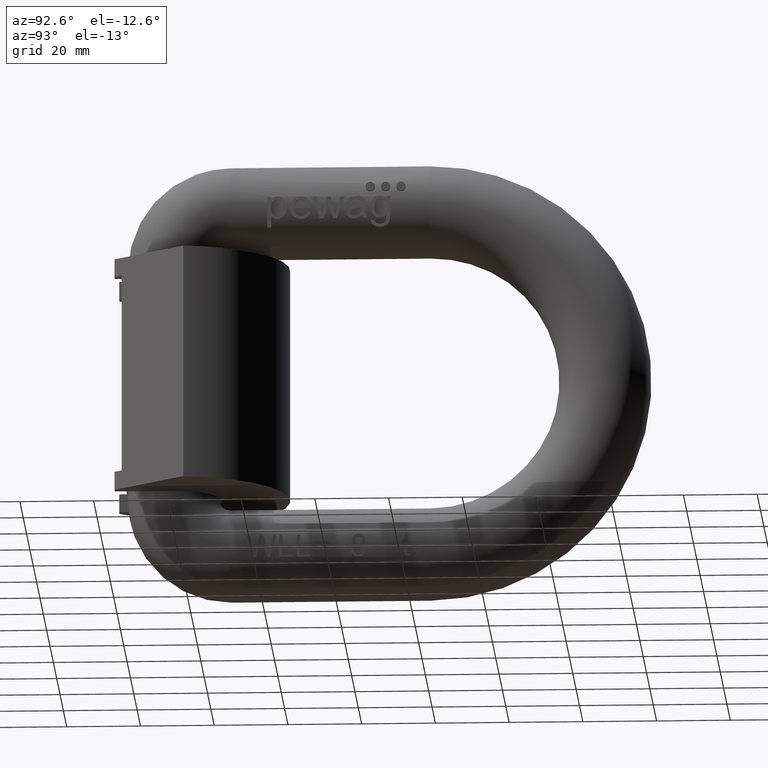
[diagram: clean part render]
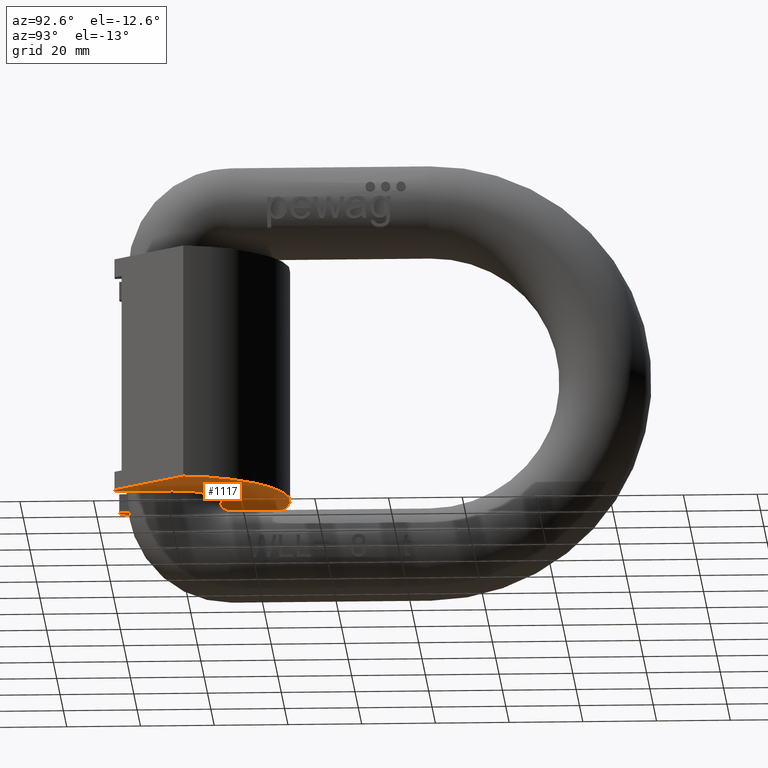
[diagram: same view with one face highlighted and labeled with its STEP entity id]
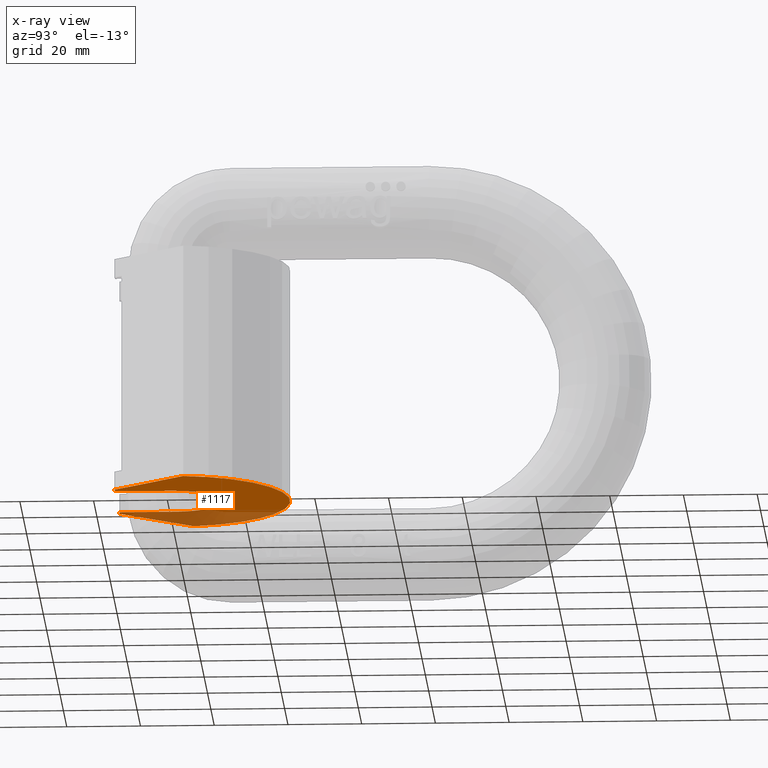
[diagram: x-ray of the same camera — body ghosted, the highlighted face saturated]
A machine part, auxiliary view. The second image highlights one B-rep face of the part: STEP entity #1117.
The next image is the same camera in x-ray: the body ghosted, the highlighted face saturated — about 31% of this face is hidden behind the body in this view.
In plain terms, the highlighted planar face has unit normal (0, 0, -1).
Its self-contained STEP definition (entity closure, byte-faithful):
#932=PLANE('',#6763);
#1117=ADVANCED_FACE('',(#1506),#932,.T.);
#1506=FACE_OUTER_BOUND('',#1850,.T.);
#1850=EDGE_LOOP('',(#2334,#2335,#2336,#2337,#2338,#2339,#2340,#2341));
#2269=CIRCLE('',#6758,31.5);
#2271=CIRCLE('',#6762,13.);
#2334=ORIENTED_EDGE('',*,*,#4867,.F.);
#2335=ORIENTED_EDGE('',*,*,#4868,.T.);
#2336=ORIENTED_EDGE('',*,*,#4859,.F.);
#2337=ORIENTED_EDGE('',*,*,#4869,.T.);
#2338=ORIENTED_EDGE('',*,*,#4870,.F.);
#2339=ORIENTED_EDGE('',*,*,#4871,.F.);
#2340=ORIENTED_EDGE('',*,*,#4872,.F.);
#2341=ORIENTED_EDGE('',*,*,#4873,.F.);
#4219=VERTEX_POINT('',#8228);
#4221=VERTEX_POINT('',#8232);
#4228=VERTEX_POINT('',#8250);
#4229=VERTEX_POINT('',#8251);
#4230=VERTEX_POINT('',#8254);
#4231=VERTEX_POINT('',#8256);
#4232=VERTEX_POINT('',#8258);
#4233=VERTEX_POINT('',#8260);
#4859=EDGE_CURVE('',#4221,#4219,#2269,.T.);
#4867=EDGE_CURVE('',#4228,#4229,#5812,.T.);
#4868=EDGE_CURVE('',#4228,#4219,#5813,.T.);
#4869=EDGE_CURVE('',#4221,#4230,#5814,.T.);
#4870=EDGE_CURVE('',#4231,#4230,#5815,.T.);
#4871=EDGE_CURVE('',#4232,#4231,#5816,.T.);
#4872=EDGE_CURVE('',#4233,#4232,#2271,.T.);
#4873=EDGE_CURVE('',#4229,#4233,#5817,.T.);
#5812=LINE('',#8249,#6210);
#5813=LINE('',#8252,#6211);
#5814=LINE('',#8253,#6212);
#5815=LINE('',#8255,#6213);
#5816=LINE('',#8257,#6214);
#5817=LINE('',#8261,#6215);
#6210=VECTOR('',#7081,1.);
#6211=VECTOR('',#7082,1.);
#6212=VECTOR('',#7083,1.);
#6213=VECTOR('',#7084,1.);
#6214=VECTOR('',#7085,1.);
#6215=VECTOR('',#7088,1.);
#6758=AXIS2_PLACEMENT_3D('',#8233,#7067,#7068);
#6762=AXIS2_PLACEMENT_3D('',#8259,#7086,#7087);
#6763=AXIS2_PLACEMENT_3D('',#8262,#7089,#7090);
#7067=DIRECTION('',(0.,0.,1.));
#7068=DIRECTION('',(1.,0.,0.));
#7081=DIRECTION('',(1.,2.13205650059733E-32,0.));
#7082=DIRECTION('',(-0.642787609686539,0.766044443118978,0.));
#7083=DIRECTION('',(-0.642787609686539,-0.766044443118978,0.));
#7084=DIRECTION('',(1.,-2.13205650059733E-32,0.));
#7085=DIRECTION('',(2.23835287222814E-16,-1.,0.));
#7086=DIRECTION('',(0.,0.,-1.));
#7087=DIRECTION('',(1.,1.33440267382831E-16,0.));
#7088=DIRECTION('',(2.23835287222814E-16,1.,0.));
#7089=DIRECTION('',(0.,0.,-1.));
#7090=DIRECTION('',(-1.,0.,0.));
#8228=CARTESIAN_POINT('',(-31.2603370435278,19.378315088417,-32.));
#8232=CARTESIAN_POINT('',(31.2603370435278,19.378315088417,-32.));
#8233=CARTESIAN_POINT('',(0.,15.5,-32.));
#8249=CARTESIAN_POINT('',(-31.5,-3.94430452610506E-31,-32.));
#8250=CARTESIAN_POINT('',(-15.,0.,-32.));
#8251=CARTESIAN_POINT('',(-13.,0.,-32.));
#8252=CARTESIAN_POINT('',(-16.4346214183466,1.70971522932715,-32.));
#8253=CARTESIAN_POINT('',(16.4346214183466,1.70971522932715,-32.));
#8254=CARTESIAN_POINT('',(15.,0.,-32.));
#8255=CARTESIAN_POINT('',(13.,0.,-32.));
#8256=CARTESIAN_POINT('',(13.,0.,-32.));
#8257=CARTESIAN_POINT('',(13.,15.5,-32.));
#8258=CARTESIAN_POINT('',(13.,15.5,-32.));
#8259=CARTESIAN_POINT('',(0.,15.5,-32.));
#8260=CARTESIAN_POINT('',(-13.,15.5,-32.));
#8261=CARTESIAN_POINT('',(-13.,0.,-32.));
#8262=CARTESIAN_POINT('',(0.,15.5,-32.));